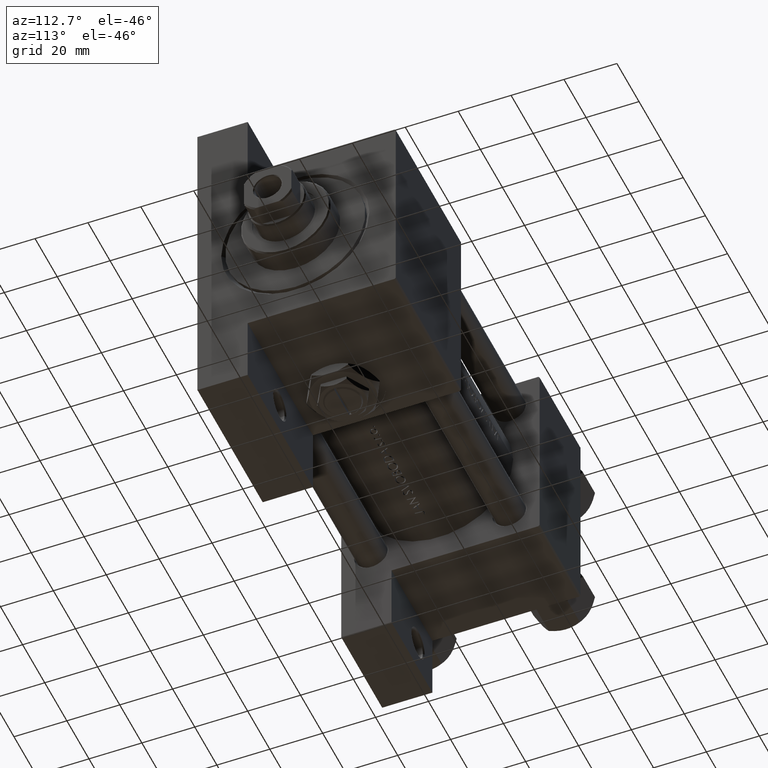
[diagram: clean part render]
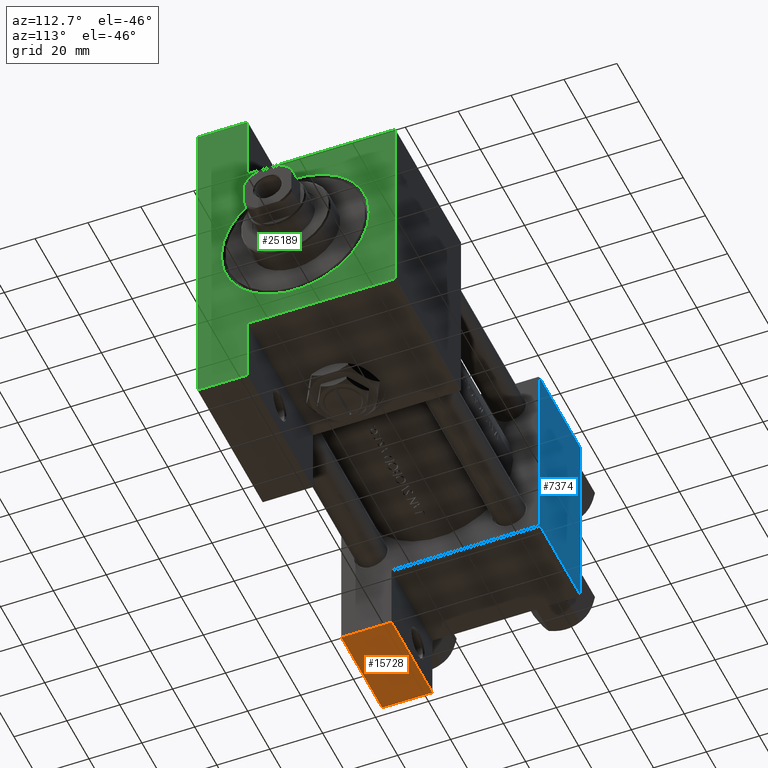
[diagram: same view with three faces highlighted in distinct colors, each labeled with its STEP entity id]
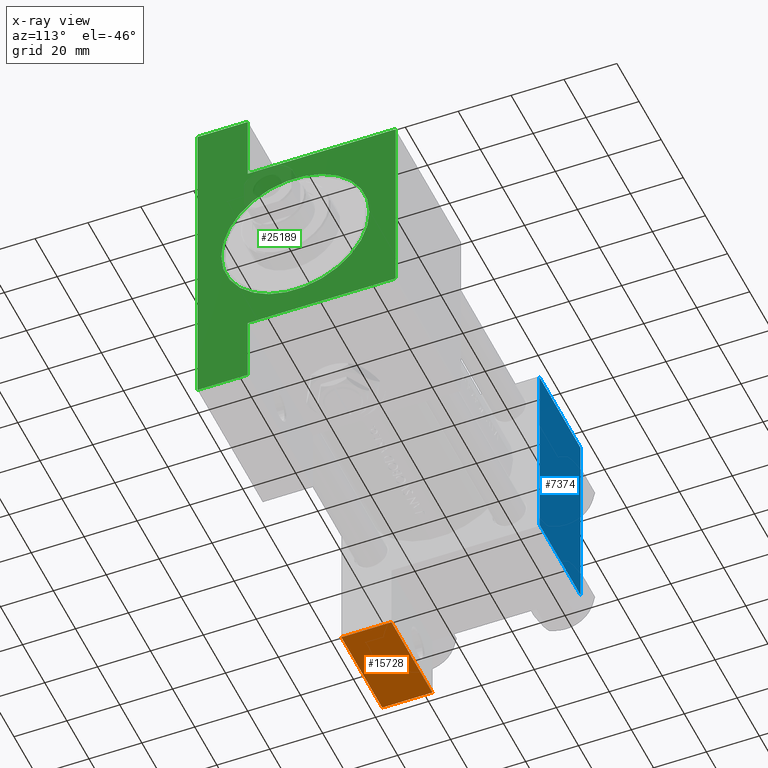
[diagram: x-ray of the same camera — body ghosted, the three highlighted faces saturated]
A machine part, auxiliary view with three faces highlighted in distinct colors.
The next image is the same camera in x-ray (body ghosted, the three faces saturated) — at least one of them is partly hidden behind the body in this view.
Their STEP definitions:

[orange] entity #15728 — the highlighted planar face has unit normal (0, -0, -1).
#218 = ORIENTED_EDGE ( 'NONE', *, *, #37031, .F. ) ;
#822 = DIRECTION ( 'NONE',  ( 0.000000000000000000, 1.734723475976806848E-16, 1.000000000000000000 ) ) ;
#2611 = CARTESIAN_POINT ( 'NONE',  ( 1.595073532467135441E-14, 63.50000000000000000, -37.50000000000002132 ) ) ;
#4409 = EDGE_CURVE ( 'NONE', #29512, #33654, #19052, .T. ) ;
#4421 = VECTOR ( 'NONE', #11332, 1000.000000000000000 ) ;
#5063 = DIRECTION ( 'NONE',  ( 0.000000000000000000, 1.000000000000000000, -1.734723475976806848E-16 ) ) ;
#9852 = DIRECTION ( 'NONE',  ( 1.000000000000000000, 0.000000000000000000, 0.000000000000000000 ) ) ;
#10093 = LINE ( 'NONE', #2611, #46623 ) ;
#11210 = CARTESIAN_POINT ( 'NONE',  ( 37.00000000000001421, 63.50000000000000000, -18.50000000000000355 ) ) ;
#11332 = DIRECTION ( 'NONE',  ( 0.000000000000000000, -1.734723475976806848E-16, -1.000000000000000000 ) ) ;
#12587 = CARTESIAN_POINT ( 'NONE',  ( 37.00000000000001421, 63.50000000000000000, -37.50000000000002132 ) ) ;
#15728 = ADVANCED_FACE ( 'NONE', ( #24001 ), #47357, .T. ) ;
#16753 = LINE ( 'NONE', #19493, #23831 ) ;
#17124 = CARTESIAN_POINT ( 'NONE',  ( 1.595073532467135441E-14, 63.50000000000000000, -37.50000000000002132 ) ) ;
#17298 = CARTESIAN_POINT ( 'NONE',  ( 1.595073532467135441E-14, 63.50000000000000000, -18.50000000000000355 ) ) ;
#17543 = LINE ( 'NONE', #17298, #29082 ) ;
#18210 = EDGE_LOOP ( 'NONE', ( #218, #34097, #33924, #46281 ) ) ;
#19052 = LINE ( 'NONE', #34233, #4421 ) ;
#19493 = CARTESIAN_POINT ( 'NONE',  ( 1.595073532467135441E-14, 63.50000000000001421, 26.72167621838005047 ) ) ;
#20790 = DIRECTION ( 'NONE',  ( -1.000000000000000000, 0.000000000000000000, 0.000000000000000000 ) ) ;
#23831 = VECTOR ( 'NONE', #34669, 1000.000000000000000 ) ;
#24001 = FACE_OUTER_BOUND ( 'NONE', #18210, .T. ) ;
#24548 = AXIS2_PLACEMENT_3D ( 'NONE', #46628, #5063, #822 ) ;
#29082 = VECTOR ( 'NONE', #20790, 1000.000000000000000 ) ;
#29512 = VERTEX_POINT ( 'NONE', #11210 ) ;
#33654 = VERTEX_POINT ( 'NONE', #12587 ) ;
#33924 = ORIENTED_EDGE ( 'NONE', *, *, #38889, .F. ) ;
#34097 = ORIENTED_EDGE ( 'NONE', *, *, #4409, .T. ) ;
#34233 = CARTESIAN_POINT ( 'NONE',  ( 37.00000000000001421, 63.50000000000001421, 26.72167621838005047 ) ) ;
#34669 = DIRECTION ( 'NONE',  ( 0.000000000000000000, -1.734723475976806848E-16, -1.000000000000000000 ) ) ;
#37031 = EDGE_CURVE ( 'NONE', #29512, #41699, #17543, .T. ) ;
#37665 = VERTEX_POINT ( 'NONE', #17124 ) ;
#38889 = EDGE_CURVE ( 'NONE', #37665, #33654, #10093, .T. ) ;
#41699 = VERTEX_POINT ( 'NONE', #45476 ) ;
#45476 = CARTESIAN_POINT ( 'NONE',  ( 1.595073532467135441E-14, 63.50000000000000000, -18.50000000000000355 ) ) ;
#46281 = ORIENTED_EDGE ( 'NONE', *, *, #49022, .F. ) ;
#46623 = VECTOR ( 'NONE', #9852, 1000.000000000000000 ) ;
#46628 = CARTESIAN_POINT ( 'NONE',  ( 1.595073532467135441E-14, 63.50000000000001421, 26.72167621838005047 ) ) ;
#47357 = PLANE ( 'NONE',  #24548 ) ;
#49022 = EDGE_CURVE ( 'NONE', #41699, #37665, #16753, .T. ) ;

[blue] entity #7374 — the highlighted planar face has unit normal (0, -1, -0).
#814 = DIRECTION ( 'NONE',  ( 1.000000000000000000, 0.000000000000000000, 0.000000000000000000 ) ) ;
#3671 = VECTOR ( 'NONE', #30546, 1000.000000000000000 ) ;
#4094 = CARTESIAN_POINT ( 'NONE',  ( 0.000000000000000000, 37.49999999999999289, 37.50000000000000000 ) ) ;
#4264 = VECTOR ( 'NONE', #19284, 1000.000000000000000 ) ;
#7374 = ADVANCED_FACE ( 'NONE', ( #23840 ), #28054, .F. ) ;
#10663 = DIRECTION ( 'NONE',  ( -1.000000000000000000, 0.000000000000000000, 0.000000000000000000 ) ) ;
#15736 = VERTEX_POINT ( 'NONE', #27477 ) ;
#17472 = CARTESIAN_POINT ( 'NONE',  ( 37.00000000000000000, -37.00000000000000711, 37.49999999999999289 ) ) ;
#17888 = EDGE_CURVE ( 'NONE', #15736, #22217, #31199, .T. ) ;
#18130 = LINE ( 'NONE', #44773, #34352 ) ;
#19284 = DIRECTION ( 'NONE',  ( 0.000000000000000000, -1.000000000000000000, -9.251858538542971581E-17 ) ) ;
#20410 = AXIS2_PLACEMENT_3D ( 'NONE', #39015, #42989, #35268 ) ;
#22217 = VERTEX_POINT ( 'NONE', #17472 ) ;
#23744 = CARTESIAN_POINT ( 'NONE',  ( 37.00000000000000000, -37.00000000000000711, 37.49999999999999289 ) ) ;
#23840 = FACE_OUTER_BOUND ( 'NONE', #31547, .T. ) ;
#24883 = ORIENTED_EDGE ( 'NONE', *, *, #42929, .F. ) ;
#26473 = VERTEX_POINT ( 'NONE', #41423 ) ;
#27477 = CARTESIAN_POINT ( 'NONE',  ( 0.000000000000000000, -37.00000000000000711, 37.49999999999999289 ) ) ;
#27847 = VECTOR ( 'NONE', #814, 1000.000000000000000 ) ;
#28020 = EDGE_CURVE ( 'NONE', #41063, #15736, #38217, .T. ) ;
#28054 = PLANE ( 'NONE',  #20410 ) ;
#29929 = EDGE_CURVE ( 'NONE', #26473, #41063, #18130, .T. ) ;
#30546 = DIRECTION ( 'NONE',  ( 0.000000000000000000, -1.000000000000000000, -9.251858538542971581E-17 ) ) ;
#30647 = CARTESIAN_POINT ( 'NONE',  ( 0.000000000000000000, 36.99999999999999289, 37.50000000000000000 ) ) ;
#31049 = LINE ( 'NONE', #46226, #3671 ) ;
#31199 = LINE ( 'NONE', #23744, #27847 ) ;
#31547 = EDGE_LOOP ( 'NONE', ( #33788, #33686, #24883, #48357 ) ) ;
#33686 = ORIENTED_EDGE ( 'NONE', *, *, #17888, .T. ) ;
#33788 = ORIENTED_EDGE ( 'NONE', *, *, #28020, .T. ) ;
#34352 = VECTOR ( 'NONE', #10663, 1000.000000000000000 ) ;
#35268 = DIRECTION ( 'NONE',  ( 0.000000000000000000, 1.000000000000000000, 9.251858538542971581E-17 ) ) ;
#38217 = LINE ( 'NONE', #4094, #4264 ) ;
#39015 = CARTESIAN_POINT ( 'NONE',  ( 37.00000000000000000, 37.49999999999999289, 37.50000000000000000 ) ) ;
#41063 = VERTEX_POINT ( 'NONE', #30647 ) ;
#41423 = CARTESIAN_POINT ( 'NONE',  ( 37.00000000000000000, 36.99999999999999289, 37.50000000000000000 ) ) ;
#42929 = EDGE_CURVE ( 'NONE', #26473, #22217, #31049, .T. ) ;
#42989 = DIRECTION ( 'NONE',  ( 0.000000000000000000, 9.251858538542971581E-17, -1.000000000000000000 ) ) ;
#44773 = CARTESIAN_POINT ( 'NONE',  ( 0.000000000000000000, 36.99999999999999289, 37.50000000000000000 ) ) ;
#46226 = CARTESIAN_POINT ( 'NONE',  ( 37.00000000000000000, 37.49999999999999289, 37.50000000000000000 ) ) ;
#48357 = ORIENTED_EDGE ( 'NONE', *, *, #29929, .T. ) ;

[green] entity #25189 — the highlighted planar face has unit normal (-1, 0, 0).
#40 = LINE ( 'NONE', #7528, #42687 ) ;
#874 = CARTESIAN_POINT ( 'NONE',  ( 166.9999999999999716, 0.000000000000000000, 0.000000000000000000 ) ) ;
#1296 = EDGE_LOOP ( 'NONE', ( #7422, #28612 ) ) ;
#1610 = FACE_BOUND ( 'NONE', #1296, .T. ) ;
#1925 = CARTESIAN_POINT ( 'NONE',  ( 166.9999999999999716, -63.50000000000002842, -18.50000000000000000 ) ) ;
#2024 = CARTESIAN_POINT ( 'NONE',  ( 166.9999999999999716, 37.50000000000000000, 36.99999999999999289 ) ) ;
#2939 = EDGE_CURVE ( 'NONE', #46972, #41334, #39693, .T. ) ;
#4954 = DIRECTION ( 'NONE',  ( -0.000000000000000000, -1.000000000000000000, -0.000000000000000000 ) ) ;
#5616 = CARTESIAN_POINT ( 'NONE',  ( 166.9999999999999716, 37.49999999999997868, -18.50000000000000000 ) ) ;
#7422 = ORIENTED_EDGE ( 'NONE', *, *, #42366, .T. ) ;
#7528 = CARTESIAN_POINT ( 'NONE',  ( 167.0000000000000000, 63.50000000000000000, -18.50000000000000000 ) ) ;
#7614 = CARTESIAN_POINT ( 'NONE',  ( 166.9999999999999716, 3.429011037612588881E-15, 27.49999999999999645 ) ) ;
#8176 = LINE ( 'NONE', #19371, #16617 ) ;
#8355 = DIRECTION ( 'NONE',  ( 0.000000000000000000, 0.000000000000000000, 1.000000000000000000 ) ) ;
#8605 = FACE_OUTER_BOUND ( 'NONE', #32518, .T. ) ;
#9311 = DIRECTION ( 'NONE',  ( -0.000000000000000000, -0.7071067811865672237, -0.7071067811865279218 ) ) ;
#9800 = CARTESIAN_POINT ( 'NONE',  ( 166.9999999999999716, -37.50000000000000000, 36.99999999999997868 ) ) ;
#10012 = CARTESIAN_POINT ( 'NONE',  ( 166.9999999999999716, -37.50000000000000711, -18.50000000000000355 ) ) ;
#10642 = ORIENTED_EDGE ( 'NONE', *, *, #49165, .T. ) ;
#11723 = EDGE_CURVE ( 'NONE', #33501, #19884, #11762, .T. ) ;
#11762 = CIRCLE ( 'NONE', #31659, 27.99999999999999645 ) ;
#12077 = CARTESIAN_POINT ( 'NONE',  ( 166.9999999999999716, -63.50000000000002842, -37.50000000000000000 ) ) ;
#12446 = CARTESIAN_POINT ( 'NONE',  ( 166.9999999999999716, -63.50000000000002842, -18.50000000000000000 ) ) ;
#12478 = VECTOR ( 'NONE', #36156, 1000.000000000000000 ) ;
#12545 = DIRECTION ( 'NONE',  ( 0.000000000000000000, 0.000000000000000000, 1.000000000000000000 ) ) ;
#12565 = VECTOR ( 'NONE', #34424, 1000.000000000000000 ) ;
#12676 = ORIENTED_EDGE ( 'NONE', *, *, #15871, .T. ) ;
#12789 = DIRECTION ( 'NONE',  ( -1.000000000000000000, -0.000000000000000000, 0.000000000000000000 ) ) ;
#12925 = ORIENTED_EDGE ( 'NONE', *, *, #44447, .F. ) ;
#13493 = LINE ( 'NONE', #43869, #12478 ) ;
#13856 = DIRECTION ( 'NONE',  ( 0.000000000000000000, -0.7071067811865474617, 0.7071067811865474617 ) ) ;
#13958 = EDGE_CURVE ( 'NONE', #41334, #18784, #18503, .T. ) ;
#15471 = CARTESIAN_POINT ( 'NONE',  ( 166.9999999999999716, 0.000000000000000000, -28.49999999999999645 ) ) ;
#15662 = VERTEX_POINT ( 'NONE', #35914 ) ;
#15871 = EDGE_CURVE ( 'NONE', #48493, #30871, #8176, .T. ) ;
#16389 = DIRECTION ( 'NONE',  ( -1.067522139062649685E-15, -1.000000000000000000, 0.000000000000000000 ) ) ;
#16423 = CIRCLE ( 'NONE', #20396, 27.99999999999999645 ) ;
#16544 = VERTEX_POINT ( 'NONE', #21528 ) ;
#16617 = VECTOR ( 'NONE', #16389, 1000.000000000000000 ) ;
#18503 = LINE ( 'NONE', #41416, #12565 ) ;
#18784 = VERTEX_POINT ( 'NONE', #10012 ) ;
#19371 = CARTESIAN_POINT ( 'NONE',  ( 167.0000000000000000, 63.50000000000000000, -18.50000000000000000 ) ) ;
#19485 = VECTOR ( 'NONE', #9311, 1000.000000000000000 ) ;
#19686 = VECTOR ( 'NONE', #4954, 1000.000000000000000 ) ;
#19884 = VERTEX_POINT ( 'NONE', #15471 ) ;
#20396 = AXIS2_PLACEMENT_3D ( 'NONE', #20501, #12789, #12545 ) ;
#20472 = CARTESIAN_POINT ( 'NONE',  ( 166.9999999999999716, -63.50000000000002842, -18.50000000000000000 ) ) ;
#20501 = CARTESIAN_POINT ( 'NONE',  ( 166.9999999999999716, 0.000000000000000000, -0.5000000000000004441 ) ) ;
#20855 = LINE ( 'NONE', #1925, #19686 ) ;
#21454 = DIRECTION ( 'NONE',  ( 0.000000000000000000, -1.000000000000000000, -1.850371707708594316E-16 ) ) ;
#21528 = CARTESIAN_POINT ( 'NONE',  ( 166.9999999999999716, 37.00000000000000000, 37.49999999999999289 ) ) ;
#22463 = EDGE_CURVE ( 'NONE', #39267, #16544, #47959, .T. ) ;
#23546 = DIRECTION ( 'NONE',  ( -1.000000000000000000, -0.000000000000000000, 0.000000000000000000 ) ) ;
#25100 = VERTEX_POINT ( 'NONE', #12077 ) ;
#25189 = ADVANCED_FACE ( 'NONE', ( #1610, #8605 ), #27778, .F. ) ;
#25255 = DIRECTION ( 'NONE',  ( -1.000000000000000000, -0.000000000000000000, 0.000000000000000000 ) ) ;
#26829 = ORIENTED_EDGE ( 'NONE', *, *, #13958, .T. ) ;
#26868 = CARTESIAN_POINT ( 'NONE',  ( 166.9999999999999716, 37.50000000000000000, 37.49999999999999289 ) ) ;
#27165 = VECTOR ( 'NONE', #13856, 1000.000000000000114 ) ;
#27643 = DIRECTION ( 'NONE',  ( 0.000000000000000000, 0.000000000000000000, -1.000000000000000000 ) ) ;
#27778 = PLANE ( 'NONE',  #48680 ) ;
#27881 = ORIENTED_EDGE ( 'NONE', *, *, #40092, .F. ) ;
#28612 = ORIENTED_EDGE ( 'NONE', *, *, #11723, .T. ) ;
#29695 = EDGE_CURVE ( 'NONE', #30224, #25100, #31372, .T. ) ;
#29702 = CARTESIAN_POINT ( 'NONE',  ( 166.9999999999999716, 0.000000000000000000, -0.5000000000000004441 ) ) ;
#30224 = VERTEX_POINT ( 'NONE', #20472 ) ;
#30871 = VERTEX_POINT ( 'NONE', #5616 ) ;
#31372 = LINE ( 'NONE', #12446, #32809 ) ;
#31485 = ORIENTED_EDGE ( 'NONE', *, *, #29695, .T. ) ;
#31659 = AXIS2_PLACEMENT_3D ( 'NONE', #29702, #25255, #47883 ) ;
#32518 = EDGE_LOOP ( 'NONE', ( #12925, #38358, #10642, #39943, #26829, #41013, #31485, #27881, #42927, #12676 ) ) ;
#32809 = VECTOR ( 'NONE', #27643, 1000.000000000000000 ) ;
#33501 = VERTEX_POINT ( 'NONE', #7614 ) ;
#34424 = DIRECTION ( 'NONE',  ( 0.000000000000000000, -9.251858538542972814E-17, -1.000000000000000000 ) ) ;
#34816 = LINE ( 'NONE', #26868, #43489 ) ;
#35788 = CARTESIAN_POINT ( 'NONE',  ( 166.9999999999999716, 37.00000000000000000, 37.49999999999999289 ) ) ;
#35914 = CARTESIAN_POINT ( 'NONE',  ( 167.0000000000000000, 63.50000000000000000, -37.50000000000000000 ) ) ;
#36156 = DIRECTION ( 'NONE',  ( 0.000000000000000000, -1.000000000000000000, 0.000000000000000000 ) ) ;
#37330 = CARTESIAN_POINT ( 'NONE',  ( 166.9999999999999716, -37.50000000000000000, 36.99999999999997868 ) ) ;
#38358 = ORIENTED_EDGE ( 'NONE', *, *, #22463, .T. ) ;
#39267 = VERTEX_POINT ( 'NONE', #2024 ) ;
#39693 = LINE ( 'NONE', #9800, #19485 ) ;
#39943 = ORIENTED_EDGE ( 'NONE', *, *, #2939, .T. ) ;
#40092 = EDGE_CURVE ( 'NONE', #15662, #25100, #13493, .T. ) ;
#41013 = ORIENTED_EDGE ( 'NONE', *, *, #41890, .T. ) ;
#41334 = VERTEX_POINT ( 'NONE', #37330 ) ;
#41416 = CARTESIAN_POINT ( 'NONE',  ( 166.9999999999999716, -37.50000000000000000, 37.49999999999997868 ) ) ;
#41890 = EDGE_CURVE ( 'NONE', #18784, #30224, #20855, .T. ) ;
#42132 = DIRECTION ( 'NONE',  ( 0.000000000000000000, 0.000000000000000000, -1.000000000000000000 ) ) ;
#42366 = EDGE_CURVE ( 'NONE', #19884, #33501, #16423, .T. ) ;
#42687 = VECTOR ( 'NONE', #42132, 1000.000000000000000 ) ;
#42927 = ORIENTED_EDGE ( 'NONE', *, *, #44257, .F. ) ;
#43373 = CARTESIAN_POINT ( 'NONE',  ( 166.9999999999999716, 37.50000000000000000, 37.49999999999999289 ) ) ;
#43489 = VECTOR ( 'NONE', #49266, 1000.000000000000000 ) ;
#43670 = VECTOR ( 'NONE', #21454, 1000.000000000000000 ) ;
#43869 = CARTESIAN_POINT ( 'NONE',  ( 166.9999999999999716, 37.50000000000000000, -37.50000000000000000 ) ) ;
#44257 = EDGE_CURVE ( 'NONE', #48493, #15662, #40, .T. ) ;
#44398 = CARTESIAN_POINT ( 'NONE',  ( 166.9999999999999716, -36.99999999999997158, 37.49999999999997868 ) ) ;
#44447 = EDGE_CURVE ( 'NONE', #39267, #30871, #34816, .T. ) ;
#46972 = VERTEX_POINT ( 'NONE', #44398 ) ;
#47046 = CARTESIAN_POINT ( 'NONE',  ( 167.0000000000000000, 63.50000000000000000, -18.50000000000000000 ) ) ;
#47112 = LINE ( 'NONE', #43373, #43670 ) ;
#47883 = DIRECTION ( 'NONE',  ( 0.000000000000000000, 0.000000000000000000, 1.000000000000000000 ) ) ;
#47959 = LINE ( 'NONE', #35788, #27165 ) ;
#48493 = VERTEX_POINT ( 'NONE', #47046 ) ;
#48680 = AXIS2_PLACEMENT_3D ( 'NONE', #874, #23546, #8355 ) ;
#49165 = EDGE_CURVE ( 'NONE', #16544, #46972, #47112, .T. ) ;
#49266 = DIRECTION ( 'NONE',  ( 0.000000000000000000, 0.000000000000000000, -1.000000000000000000 ) ) ;